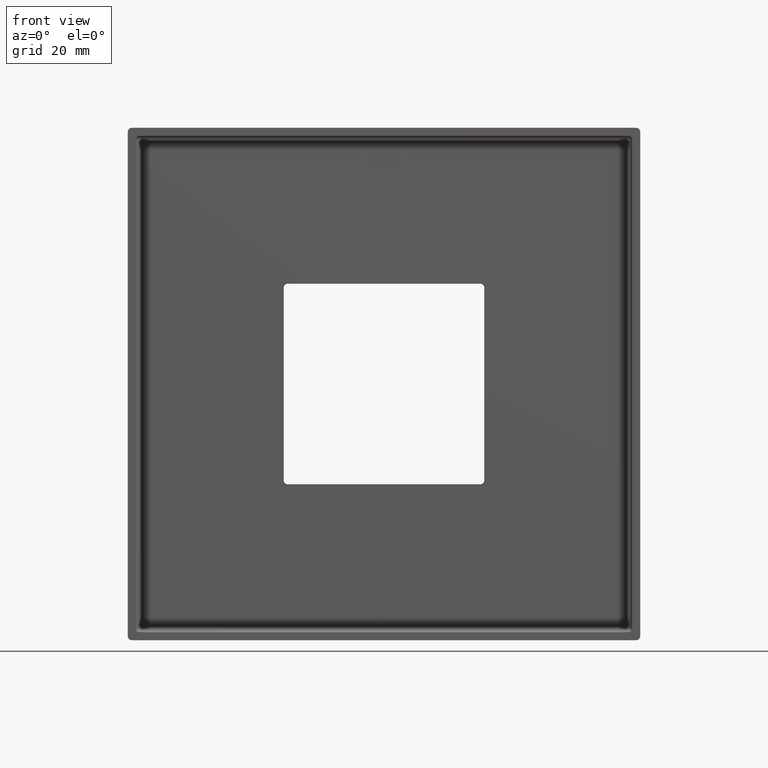
[diagram: clean part render]
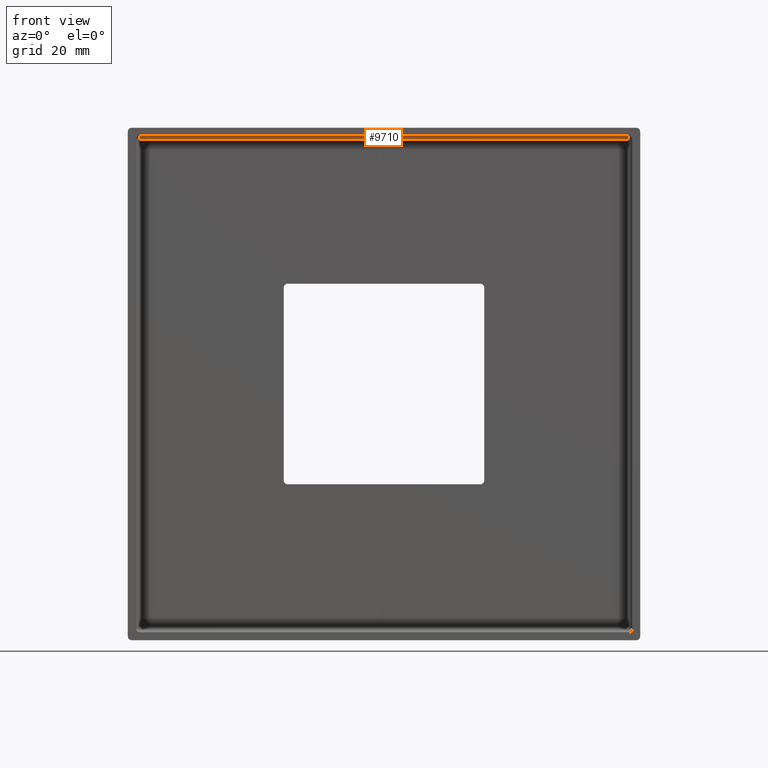
[diagram: same view with one face highlighted and labeled with its STEP entity id]
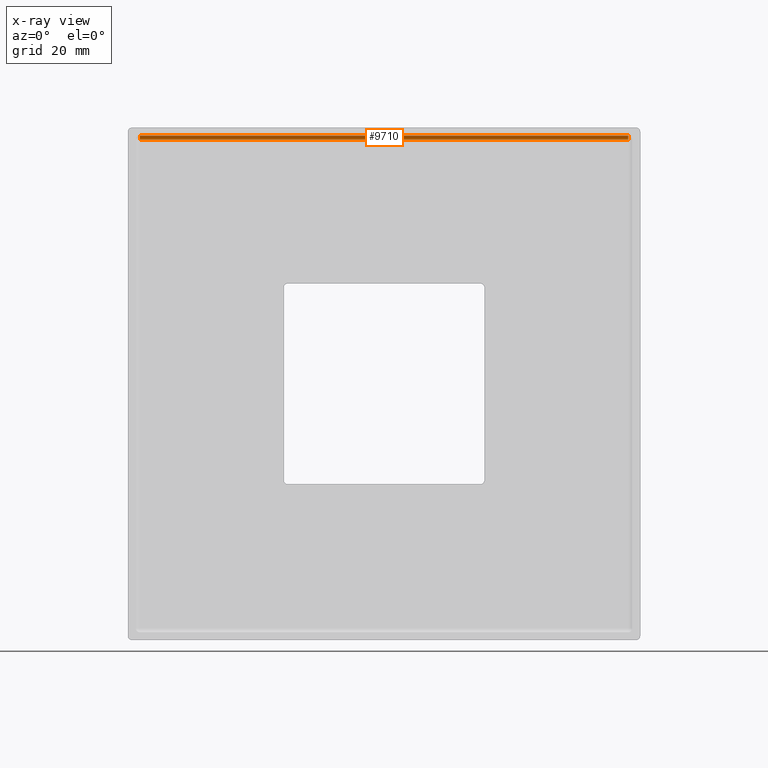
[diagram: x-ray of the same camera — body ghosted, the highlighted face saturated]
A machine part, front view. The second image highlights one B-rep face of the part: STEP entity #9710.
The next image is the same camera in x-ray: the body ghosted, the highlighted face saturated — about 0% of this face is hidden behind the body in this view.
In plain terms, the highlighted cylindrical surface (edge-blend (fillet) strip) has radius 1 mm, axis along (1, -0, 0).
Its self-contained STEP definition (entity closure, byte-faithful):
#307 = ORIENTED_EDGE ( 'NONE', *, *, #13949, .F. ) ;
#350 = ORIENTED_EDGE ( 'NONE', *, *, #3334, .F. ) ;
#672 = CARTESIAN_POINT ( 'NONE',  ( -64.49999999999997158, 22.00000000000000000, 61.50000000000000000 ) ) ;
#1868 = AXIS2_PLACEMENT_3D ( 'NONE', #672, #6623, #9241 ) ;
#3084 = CARTESIAN_POINT ( 'NONE',  ( 0.000000000000000000, 23.00000000000000000, 61.50000000000000000 ) ) ;
#3334 = EDGE_CURVE ( 'NONE', #9078, #12021, #3931, .T. ) ;
#3338 = CARTESIAN_POINT ( 'NONE',  ( 61.50000000000000000, 22.00000000000000000, 61.50000000000000000 ) ) ;
#3931 = LINE ( 'NONE', #3084, #11638 ) ;
#3987 = DIRECTION ( 'NONE',  ( 0.000000000000000000, 0.000000000000000000, -1.000000000000000000 ) ) ;
#4008 = CARTESIAN_POINT ( 'NONE',  ( 61.50000000000000000, 22.00000000000000000, 62.50000000000000000 ) ) ;
#4049 = AXIS2_PLACEMENT_3D ( 'NONE', #3338, #7138, #15716 ) ;
#4833 = CIRCLE ( 'NONE', #10731, 1.000000000000000888 ) ;
#5664 = ORIENTED_EDGE ( 'NONE', *, *, #13828, .F. ) ;
#6225 = DIRECTION ( 'NONE',  ( 1.000000000000000000, -0.000000000000000000, 0.000000000000000000 ) ) ;
#6295 = CARTESIAN_POINT ( 'NONE',  ( -61.49999999999997158, 22.00000000000000000, 62.50000000000000000 ) ) ;
#6623 = DIRECTION ( 'NONE',  ( 1.000000000000000000, -0.000000000000000000, 0.000000000000000000 ) ) ;
#7023 = CYLINDRICAL_SURFACE ( 'NONE', #1868, 1.000000000000000888 ) ;
#7138 = DIRECTION ( 'NONE',  ( -1.000000000000000000, 0.000000000000000000, 0.000000000000000000 ) ) ;
#8048 = ORIENTED_EDGE ( 'NONE', *, *, #11475, .F. ) ;
#8408 = EDGE_LOOP ( 'NONE', ( #5664, #8048, #307, #350 ) ) ;
#8798 = CARTESIAN_POINT ( 'NONE',  ( -61.49999999999997158, 22.00000000000000000, 61.50000000000000000 ) ) ;
#9078 = VERTEX_POINT ( 'NONE', #13703 ) ;
#9241 = DIRECTION ( 'NONE',  ( 0.000000000000000000, 0.000000000000000000, -1.000000000000000000 ) ) ;
#9387 = DIRECTION ( 'NONE',  ( -1.000000000000000000, 0.000000000000000000, -0.000000000000000000 ) ) ;
#9710 = ADVANCED_FACE ( 'NONE', ( #10116 ), #7023, .F. ) ;
#10116 = FACE_OUTER_BOUND ( 'NONE', #8408, .T. ) ;
#10471 = VECTOR ( 'NONE', #6225, 1000.000000000000000 ) ;
#10731 = AXIS2_PLACEMENT_3D ( 'NONE', #8798, #13933, #3987 ) ;
#10998 = CIRCLE ( 'NONE', #4049, 1.000000000000000888 ) ;
#11475 = EDGE_CURVE ( 'NONE', #12099, #15398, #13750, .T. ) ;
#11638 = VECTOR ( 'NONE', #9387, 1000.000000000000000 ) ;
#12021 = VERTEX_POINT ( 'NONE', #13298 ) ;
#12099 = VERTEX_POINT ( 'NONE', #6295 ) ;
#13298 = CARTESIAN_POINT ( 'NONE',  ( -61.49999999999997158, 23.00000000000000000, 61.50000000000000000 ) ) ;
#13652 = CARTESIAN_POINT ( 'NONE',  ( -64.49999999999997158, 22.00000000000000000, 62.50000000000000000 ) ) ;
#13703 = CARTESIAN_POINT ( 'NONE',  ( 61.50000000000000000, 23.00000000000000000, 61.50000000000000000 ) ) ;
#13750 = LINE ( 'NONE', #13652, #10471 ) ;
#13828 = EDGE_CURVE ( 'NONE', #15398, #9078, #10998, .T. ) ;
#13933 = DIRECTION ( 'NONE',  ( 1.000000000000000000, 0.000000000000000000, 0.000000000000000000 ) ) ;
#13949 = EDGE_CURVE ( 'NONE', #12021, #12099, #4833, .T. ) ;
#15398 = VERTEX_POINT ( 'NONE', #4008 ) ;
#15716 = DIRECTION ( 'NONE',  ( 0.000000000000000000, 0.000000000000000000, 1.000000000000000000 ) ) ;